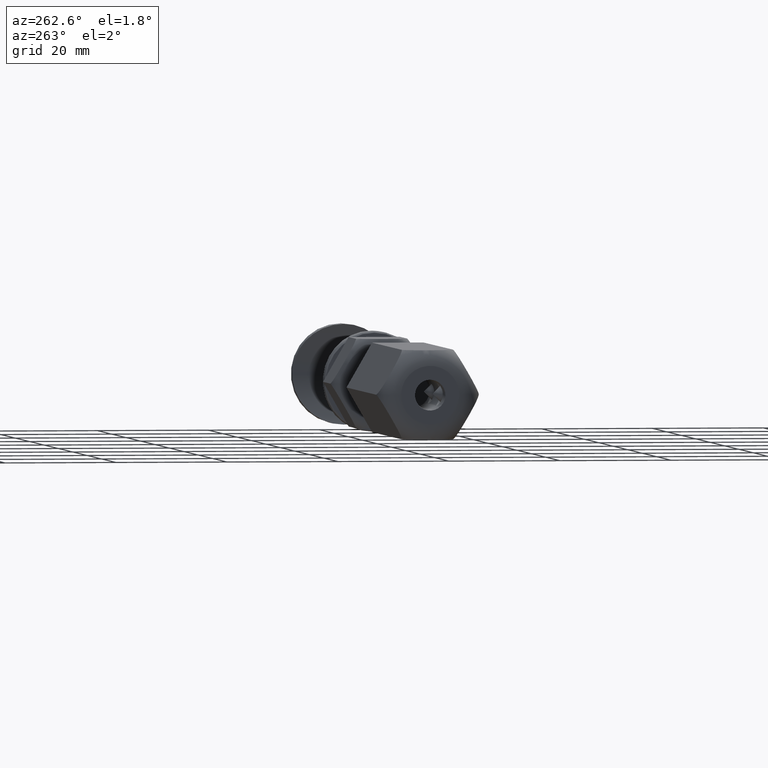
[diagram: clean part render]
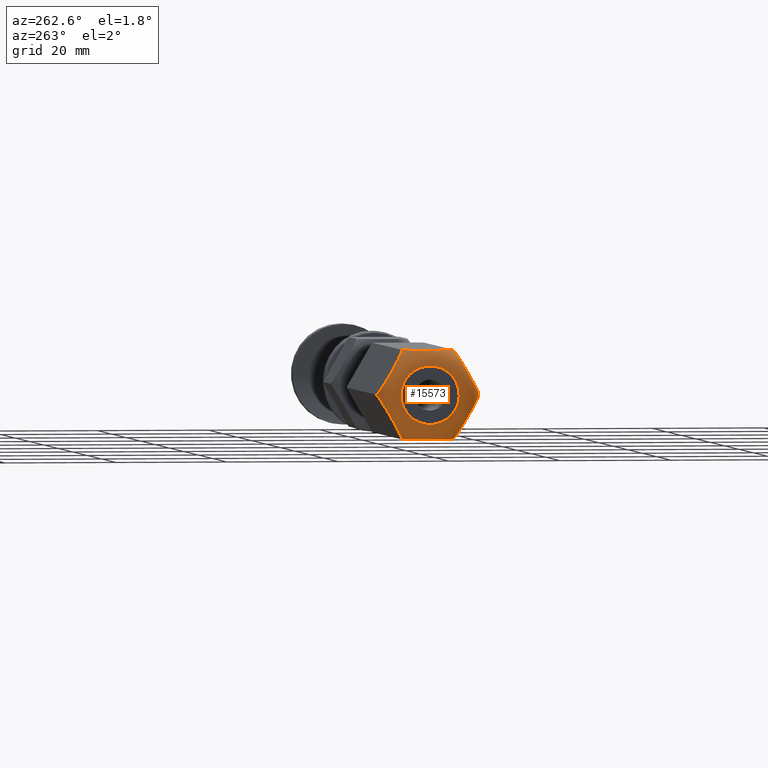
[diagram: same view with one face highlighted and labeled with its STEP entity id]
A machine part, auxiliary view. The second image highlights one B-rep face of the part: STEP entity #15573.
In plain terms, the highlighted toroidal blend (fillet) surface has major radius 5.2376 mm and minor (blend) radius 4 mm.
Its self-contained STEP definition (entity closure, byte-faithful):
#94 = CARTESIAN_POINT ( 'NONE',  ( -5.237604307034014361, 1.734723475976807094E-15, 45.00000000000000711 ) ) ;
#196 = CARTESIAN_POINT ( 'NONE',  ( -8.000000000000955680, -4.618802153516455178, 41.25421066781149193 ) ) ;
#234 = CARTESIAN_POINT ( 'NONE',  ( 0.1587222393036563095, 9.145965979445669802, 41.85383690137565083 ) ) ;
#327 = CARTESIAN_POINT ( 'NONE',  ( -7.686130079813024985, -4.800015036427481618, 42.19438614450636038 ) ) ;
#422 = CARTESIAN_POINT ( 'NONE',  ( 8.000000000000001776, 3.940089428908967406, 42.58398726992948014 ) ) ;
#487 = CARTESIAN_POINT ( 'NONE',  ( 8.000000000000001776, 0.4890779393766487293, 43.89370197131172091 ) ) ;
#551 = CARTESIAN_POINT ( 'NONE',  ( 5.075386445797202661, 6.307328576311620694, 43.80277072359240265 ) ) ;
#552 = CARTESIAN_POINT ( 'NONE',  ( 8.000000000000000000, -2.692139927352141804, 43.40298864242615196 ) ) ;
#558 = CARTESIAN_POINT ( 'NONE',  ( 0.7485458506218656272, -8.805431158676700676, 42.75669433309089840 ) ) ;
#606 = CARTESIAN_POINT ( 'NONE',  ( 1.867204179053446156, 8.159573471625517271, 43.51479239094587115 ) ) ;
#613 = CARTESIAN_POINT ( 'NONE',  ( 3.572823925020929270, -7.174833452156046398, 43.88225172653203288 ) ) ;
#661 = CIRCLE ( 'NONE', #4234, 5.237604307034014361 ) ;
#674 = CARTESIAN_POINT ( 'NONE',  ( 0.1991618949743121647, -9.122618133358280090, 41.97415419835533612 ) ) ;
#874 = CARTESIAN_POINT ( 'NONE',  ( -1.282681821586983739, 8.497047612056132238, 43.18514700619215319 ) ) ;
#1039 = CARTESIAN_POINT ( 'NONE',  ( -3.141149563985602189, 7.424060760702051454, 43.83720161989548103 ) ) ;
#1097 = CARTESIAN_POINT ( 'NONE',  ( -1.769137840282685528E-15, -9.237604307034015250, 40.99999999999999289 ) ) ;
#1130 = CARTESIAN_POINT ( 'NONE',  ( -8.000000000000003553, 4.618802153517018283, 41.25059083872422860 ) ) ;
#1230 = ORIENTED_EDGE ( 'NONE', *, *, #13378, .F. ) ;
#1249 = CARTESIAN_POINT ( 'NONE',  ( -8.000000000000003553, 2.455983584986019430, 43.49539653118362992 ) ) ;
#1307 = CARTESIAN_POINT ( 'NONE',  ( -8.000000000000003553, 0.5144507924411958477, 43.89218237815393309 ) ) ;
#1361 = CARTESIAN_POINT ( 'NONE',  ( -0.04124585867886597368, -9.213790999422815986, 41.49961142492605148 ) ) ;
#1544 = CARTESIAN_POINT ( 'NONE',  ( -4.427176074979077391, -6.681573008394971147, 43.88225172653201156 ) ) ;
#1571 = B_SPLINE_CURVE_WITH_KNOTS ( 'NONE', 3,
 ( #7275, #12896, #8674, #234, #14312, #15692, #1577, #7343, #14370, #8801, #7148, #4395, #4830, #606, #1830, #13091, #17279, #1943, #11617, #13215, #551, #13034, #8915, #14552, #13151, #1883, #3246, #11680, #4643, #9104, #17337, #16003, #3370, #4771 ),
 .UNSPECIFIED., .F., .F.,
 ( 4, 2, 2, 2, 2, 2, 2, 2, 2, 2, 2, 2, 2, 2, 2, 2, 4 ),
 ( 1.959244678758425772E-07, 0.0007486943119338015408, 0.001122943505666774240, 0.001497192699399747156, 0.001871441893132719855, 0.002245691086865692337, 0.002994189474331638168, 0.004491186249263536337, 0.005988183024195433204, 0.006736681411661382506, 0.007485179799127331807, 0.008233678186593280240, 0.008982176574059230409, 0.009730674961525180577, 0.01047917334899112901, 0.01122767173645707744, 0.01197617012392302588 ),
 .UNSPECIFIED. ) ;
#1577 = CARTESIAN_POINT ( 'NONE',  ( 0.3793270624881713848, 9.018599725395560540, 42.28713500885486098 ) ) ;
#1830 = CARTESIAN_POINT ( 'NONE',  ( 2.283122639363383666, 7.919442836604638103, 43.66016978902230505 ) ) ;
#1831 = CARTESIAN_POINT ( 'NONE',  ( 8.000000000000001776, -0.5144506521284709644, 43.89218239036202363 ) ) ;
#1883 = CARTESIAN_POINT ( 'NONE',  ( 6.717318178413018259, 5.359358848494891525, 43.18514700619214608 ) ) ;
#1943 = CARTESIAN_POINT ( 'NONE',  ( 4.211713698009296181, 6.805970269738713441, 43.89306722057519039 ) ) ;
#1946 = CARTESIAN_POINT ( 'NONE',  ( 8.000000000000001776, 3.753179266618492438, 42.75771142931566260 ) ) ;
#1953 = CARTESIAN_POINT ( 'NONE',  ( -1.769137840282685528E-15, -9.237604307034015250, 40.99999999999999289 ) ) ;
#2140 = CARTESIAN_POINT ( 'NONE',  ( 0.5871213750183053026, -8.898629623120211107, 42.58301006518296106 ) ) ;
#2277 = CARTESIAN_POINT ( 'NONE',  ( -0.1991618949743092781, 9.122618133358285419, 41.97415419835535033 ) ) ;
#2334 = CARTESIAN_POINT ( 'NONE',  ( -6.132795820946556731, 5.696832988925504715, 43.51479239094587115 ) ) ;
#2387 = CARTESIAN_POINT ( 'NONE',  ( -4.433623702003366418, 6.677850469196869199, 43.89271815893957296 ) ) ;
#2446 = CARTESIAN_POINT ( 'NONE',  ( -1.673678568543901068, 8.271305534948284688, 43.40554057758357942 ) ) ;
#2448 = CARTESIAN_POINT ( 'NONE',  ( 0.000000000000000000, 1.734723475976807094E-15, 40.99999999999999289 ) ) ;
#2480 = CARTESIAN_POINT ( 'NONE',  ( -8.000000000000001776, -3.352786722058532121, 43.05726287679456732 ) ) ;
#2590 = CARTESIAN_POINT ( 'NONE',  ( -8.000000000000003553, 2.692139954240011512, 43.40298863091239667 ) ) ;
#2712 = CARTESIAN_POINT ( 'NONE',  ( -0.3171166367991717361, -9.054516931413505887, 42.18434787125507057 ) ) ;
#2765 = CARTESIAN_POINT ( 'NONE',  ( -0.2069844883456818663, -9.118101756969558380, 41.96820820789258732 ) ) ;
#2958 = CARTESIAN_POINT ( 'NONE',  ( -5.075386445797204438, -6.307328576311621582, 43.80277072359242396 ) ) ;
#3143 = CARTESIAN_POINT ( 'NONE',  ( -8.000000000000000000, 4.618802153517014730, 40.99999999999999289 ) ) ;
#3163 = DIRECTION ( 'NONE',  ( -0.000000000000000000, -0.000000000000000000, -1.000000000000000000 ) ) ;
#3241 = B_SPLINE_CURVE_WITH_KNOTS ( 'NONE', 3,
 ( #5518, #11221, #1361, #11096, #2765, #2712, #15287, #16798, #15472, #14031, #5630, #6980, #7049, #7112, #11282, #16933, #6924, #8441, #1544, #5757, #2958, #15536, #7174, #16676, #9730, #16732, #7363, #17234, #8636, #327, #14274, #14387, #196, #12807 ),
 .UNSPECIFIED., .F., .F.,
 ( 4, 2, 2, 2, 2, 2, 2, 2, 2, 2, 2, 2, 2, 2, 2, 2, 4 ),
 ( 1.959244678758189662E-07, 0.0007486943119338005650, 0.001122943505666772939, 0.001497192699399745421, 0.001871441893132717469, 0.002245691086865689735, 0.002994189474331634699, 0.004491186249263531133, 0.005988183024195428868, 0.006736681411661377301, 0.007485179799127324868, 0.008233678186593273302, 0.008982176574059221735, 0.009730674961525171904, 0.01047917334899111860, 0.01122767173645706877, 0.01197617012392301721 ),
 .UNSPECIFIED. ) ;
#3246 = CARTESIAN_POINT ( 'NONE',  ( 6.903453441227616949, 5.251893604403200300, 43.05745001845090769 ) ) ;
#3310 = CARTESIAN_POINT ( 'NONE',  ( 8.000000000000003553, 3.352786703269217572, 43.05726288905571408 ) ) ;
#3370 = CARTESIAN_POINT ( 'NONE',  ( 8.000000000000961009, 4.618802153516453401, 41.25421066781150614 ) ) ;
#3438 = CARTESIAN_POINT ( 'NONE',  ( 1.673678568543905953, -8.271305534948281135, 43.40554057758357942 ) ) ;
#3795 = CARTESIAN_POINT ( 'NONE',  ( -3.788286301990709148, 7.050436190812306769, 43.89306722057519039 ) ) ;
#3812 = TOROIDAL_SURFACE ( 'NONE', #7846, 5.237604307034014361, 4.000000000000006217 ) ;
#3850 = DIRECTION ( 'NONE',  ( -0.000000000000000000, -0.000000000000000000, -1.000000000000000000 ) ) ;
#3877 = CARTESIAN_POINT ( 'NONE',  ( -8.000000000000003553, 3.358808931704132750, 43.05353551747013796 ) ) ;
#3994 = CARTESIAN_POINT ( 'NONE',  ( -8.000000000000003553, -4.618802153517005848, 40.99999999999999289 ) ) ;
#4058 = CARTESIAN_POINT ( 'NONE',  ( -8.000000000000005329, -4.178113496158063711, 42.29076241024051797 ) ) ;
#4234 = AXIS2_PLACEMENT_3D ( 'NONE', #4433, #3163, #4365 ) ;
#4344 = VERTEX_POINT ( 'NONE', #3143 ) ;
#4365 = DIRECTION ( 'NONE',  ( -1.000000000000000000, 0.000000000000000000, 0.000000000000000000 ) ) ;
#4395 = CARTESIAN_POINT ( 'NONE',  ( 1.092655103728776389, 8.606759588764782976, 43.05448962635249188 ) ) ;
#4403 = CARTESIAN_POINT ( 'NONE',  ( 7.250281961278693288, -5.051652064989072599, 42.74896336844649625 ) ) ;
#4433 = CARTESIAN_POINT ( 'NONE',  ( 0.000000000000000000, 1.734723475976807094E-15, 45.00000000000000711 ) ) ;
#4527 = CARTESIAN_POINT ( 'NONE',  ( 8.000000000000012434, -4.618802153517002296, 41.25468682717439606 ) ) ;
#4643 = CARTESIAN_POINT ( 'NONE',  ( 7.412878624981699360, 4.957776837430802885, 42.58301006518295395 ) ) ;
#4713 = CARTESIAN_POINT ( 'NONE',  ( 8.000000000000001776, 0.9924995606820768979, 43.85060076674451324 ) ) ;
#4771 = CARTESIAN_POINT ( 'NONE',  ( 8.000000000000010658, 4.618802153516997855, 40.99999999999999289 ) ) ;
#4776 = CARTESIAN_POINT ( 'NONE',  ( 8.000000000000000000, -3.358808912604403840, 43.05353553000416866 ) ) ;
#4825 = EDGE_CURVE ( 'NONE', #10863, #7293, #10417, .T. ) ;
#4830 = CARTESIAN_POINT ( 'NONE',  ( 1.282076073300615127, 8.497397340992328907, 43.18472171354524392 ) ) ;
#4902 = VERTEX_POINT ( 'NONE', #94 ) ;
#4914 = CARTESIAN_POINT ( 'NONE',  ( -7.793015511654325600, 4.738304703581458277, 41.96820820789258022 ) ) ;
#5136 = FACE_OUTER_BOUND ( 'NONE', #7658, .T. ) ;
#5228 = CARTESIAN_POINT ( 'NONE',  ( -8.000000000000005329, 3.141993615721023758, 43.18269221654532686 ) ) ;
#5256 = CARTESIAN_POINT ( 'NONE',  ( -4.862494959047605647, 6.430241533494679196, 43.85019408832059895 ) ) ;
#5291 = CARTESIAN_POINT ( 'NONE',  ( -8.000000000000001776, -4.569904610147636603, 41.50382557813893669 ) ) ;
#5407 = CARTESIAN_POINT ( 'NONE',  ( -8.000000000000005329, -4.434660512078902883, 41.85564047372801610 ) ) ;
#5518 = CARTESIAN_POINT ( 'NONE',  ( -1.769137840282685528E-15, -9.237604307034015250, 40.99999999999999289 ) ) ;
#5630 = CARTESIAN_POINT ( 'NONE',  ( -0.8327565186281271625, -8.756812106834653164, 42.82926552586379643 ) ) ;
#5757 = CARTESIAN_POINT ( 'NONE',  ( -4.858850436014398255, -6.432345699848972309, 43.83720161989546682 ) ) ;
#5922 = CARTESIAN_POINT ( 'NONE',  ( 8.000000000000010658, 4.618802153516997855, 40.99999999999999289 ) ) ;
#5992 = CARTESIAN_POINT ( 'NONE',  ( 8.000000000000005329, -4.618802153517001408, 40.99999999999999289 ) ) ;
#6046 = CARTESIAN_POINT ( 'NONE',  ( 8.000000000000001776, 4.434660508883089491, 41.85564048095637446 ) ) ;
#6160 = CARTESIAN_POINT ( 'NONE',  ( 8.000000000000000000, -3.942926262521257552, 42.58076650204093738 ) ) ;
#6169 = CARTESIAN_POINT ( 'NONE',  ( 0.04306599320267236880, -9.212740144265529452, 41.50668772745576263 ) ) ;
#6295 = CARTESIAN_POINT ( 'NONE',  ( 0.3138699201869741828, -9.056391424123539480, 42.19438614450636749 ) ) ;
#6322 = VERTEX_POINT ( 'NONE', #15931 ) ;
#6472 = CARTESIAN_POINT ( 'NONE',  ( 8.000000000000001776, -4.618802153517020948, 41.25059084096967865 ) ) ;
#6633 = EDGE_CURVE ( 'NONE', #4902, #4902, #661, .T. ) ;
#6640 = CARTESIAN_POINT ( 'NONE',  ( -8.000000000000000000, 4.618802153517014730, 40.99999999999999289 ) ) ;
#6669 = CARTESIAN_POINT ( 'NONE',  ( -6.907344896271228052, 5.249646871786233682, 43.05448962635252030 ) ) ;
#6696 = CARTESIAN_POINT ( 'NONE',  ( -8.000000000000003553, 1.009007921286668497, 43.84811374849191878 ) ) ;
#6875 = CARTESIAN_POINT ( 'NONE',  ( -8.000000000000003553, -1.979118659227968813, 43.66106814162166216 ) ) ;
#6924 = CARTESIAN_POINT ( 'NONE',  ( -3.566376297996639799, -7.178555991354155452, 43.89271815893957296 ) ) ;
#6980 = CARTESIAN_POINT ( 'NONE',  ( -1.092655103728780830, -8.606759588764788305, 43.05448962635250609 ) ) ;
#7049 = CARTESIAN_POINT ( 'NONE',  ( -1.282076073300619790, -8.497397340992328907, 43.18472171354525813 ) ) ;
#7079 = ORIENTED_EDGE ( 'NONE', *, *, #10219, .F. ) ;
#7112 = CARTESIAN_POINT ( 'NONE',  ( -1.867204179053449264, -8.159573471625511942, 43.51479239094587115 ) ) ;
#7148 = CARTESIAN_POINT ( 'NONE',  ( 0.8327565186281224996, 8.756812106834653164, 42.82926552586379643 ) ) ;
#7174 = CARTESIAN_POINT ( 'NONE',  ( -5.710173907115474456, -5.940833864641318129, 43.64835411522502540 ) ) ;
#7275 = CARTESIAN_POINT ( 'NONE',  ( 2.602085213965210642E-15, 9.237604307034018802, 40.99999999999999289 ) ) ;
#7287 = EDGE_CURVE ( 'NONE', #4344, #10772, #15582, .T. ) ;
#7293 = VERTEX_POINT ( 'NONE', #1097 ) ;
#7343 = CARTESIAN_POINT ( 'NONE',  ( 0.5166738966480759476, 8.939302493720997944, 42.48315152179993248 ) ) ;
#7363 = CARTESIAN_POINT ( 'NONE',  ( -6.903453441227616061, -5.251893604403200300, 43.05745001845090059 ) ) ;
#7405 = CARTESIAN_POINT ( 'NONE',  ( 8.000000000000000000, 4.569904609268164108, 41.50382558259673260 ) ) ;
#7411 = CARTESIAN_POINT ( 'NONE',  ( 7.841277760696346633, -4.710440481105351296, 41.85383690137562240 ) ) ;
#7422 = EDGE_CURVE ( 'NONE', #9886, #10863, #16716, .T. ) ;
#7469 = CARTESIAN_POINT ( 'NONE',  ( 7.999999999999998224, -1.009007826064906688, 43.84811376209939482 ) ) ;
#7474 = CARTESIAN_POINT ( 'NONE',  ( 7.682883363200835980, -4.801889529137512547, 42.18434787125504926 ) ) ;
#7658 = EDGE_LOOP ( 'NONE', ( #1230, #10931, #7079, #15444, #17504, #10591 ) ) ;
#7665 = CARTESIAN_POINT ( 'NONE',  ( -8.000000000000000000, 4.618802153517014730, 40.99999999999999289 ) ) ;
#7718 = CARTESIAN_POINT ( 'NONE',  ( 3.788286301990712257, -7.050436190812304105, 43.89306722057520460 ) ) ;
#7778 = CARTESIAN_POINT ( 'NONE',  ( -9.563346434566268250E-13, -9.237604307034564144, 41.25421066781149904 ) ) ;
#7843 = CARTESIAN_POINT ( 'NONE',  ( -7.250281961278695952, 5.051652064989072599, 42.74896336844652467 ) ) ;
#7846 = AXIS2_PLACEMENT_3D ( 'NONE', #2448, #3850, #13658 ) ;
#8011 = CARTESIAN_POINT ( 'NONE',  ( 2.602085213965210642E-15, 9.237604307034018802, 40.99999999999999289 ) ) ;
#8063 = CARTESIAN_POINT ( 'NONE',  ( -2.289826092884525544, 7.915572595909710074, 43.64835411522505382 ) ) ;
#8094 = CARTESIAN_POINT ( 'NONE',  ( -8.000000000000003553, 1.979342784770008246, 43.64712766533650523 ) ) ;
#8423 = B_SPLINE_CURVE_WITH_KNOTS ( 'NONE', 3,
 ( #3994, #12493, #5291, #5407, #17845, #16562, #4058, #9494, #15236, #2480, #11106, #12260, #6875, #15060, #13685, #1307, #6696, #15121, #8094, #1249, #2590, #5228, #3877, #9610, #12370, #10864, #15012, #10988, #1130, #6640 ),
 .UNSPECIFIED., .F., .F.,
 ( 4, 2, 2, 2, 2, 2, 2, 2, 2, 2, 2, 2, 2, 2, 4 ),
 ( 0.01782495508642078369, 0.01856757860633173954, 0.01893889036628720879, 0.01931020212624267457, 0.02005282564615359572, 0.02079544916606451688, 0.02228069620588634878, 0.02376594324570818414, 0.02525119028553001604, 0.02599381380544093026, 0.02673643732535184447, 0.02747906084526276216, 0.02822168436517367637, 0.02896430788508459406, 0.02970693140499550827 ),
 .UNSPECIFIED. ) ;
#8431 = CARTESIAN_POINT ( 'NONE',  ( 2.602085213965210642E-15, 9.237604307034018802, 40.99999999999999289 ) ) ;
#8441 = CARTESIAN_POINT ( 'NONE',  ( -4.211713698009293516, -6.805970269738712553, 43.89306722057519750 ) ) ;
#8617 = CARTESIAN_POINT ( 'NONE',  ( 6.907344896271229828, -5.249646871786233682, 43.05448962635249899 ) ) ;
#8636 = CARTESIAN_POINT ( 'NONE',  ( -7.412878624981697584, -4.957776837430807326, 42.58301006518296106 ) ) ;
#8674 = CARTESIAN_POINT ( 'NONE',  ( 0.04124585867886340629, 9.213790999422814210, 41.49961142492605148 ) ) ;
#8801 = CARTESIAN_POINT ( 'NONE',  ( 0.7497180387213137065, 8.804754395561948499, 42.74896336844652467 ) ) ;
#8803 = CARTESIAN_POINT ( 'NONE',  ( 8.000000000000003553, 4.618802153517022724, 41.25024699729215172 ) ) ;
#8861 = CARTESIAN_POINT ( 'NONE',  ( 8.000000000000003553, 3.135350852326893367, 43.18648338403921372 ) ) ;
#8915 = CARTESIAN_POINT ( 'NONE',  ( 5.710173907115477121, 5.940833864641314577, 43.64835411522502540 ) ) ;
#8917 = CARTESIAN_POINT ( 'NONE',  ( 8.000000000000001776, 4.178113488848268275, 42.29076242024786580 ) ) ;
#8980 = CARTESIAN_POINT ( 'NONE',  ( 8.000000000000000000, -4.256979566995696906, 42.19333027108968537 ) ) ;
#9047 = CARTESIAN_POINT ( 'NONE',  ( 4.433623702003368194, -6.677850469196864758, 43.89271815893955875 ) ) ;
#9104 = CARTESIAN_POINT ( 'NONE',  ( 7.686130079813029425, 4.800015036427478954, 42.19438614450637459 ) ) ;
#9124 = CARTESIAN_POINT ( 'NONE',  ( -7.483326103351930492, 4.917103966830024042, 42.48315152179993959 ) ) ;
#9293 = CARTESIAN_POINT ( 'NONE',  ( -2.499462744038903228, 7.794538818933714808, 43.70835956831881219 ) ) ;
#9411 = CARTESIAN_POINT ( 'NONE',  ( -5.716877360636620331, 5.936963623946383883, 43.66016978902231216 ) ) ;
#9494 = CARTESIAN_POINT ( 'NONE',  ( -8.000000000000005329, -3.940089439883076139, 42.58398725841495036 ) ) ;
#9610 = CARTESIAN_POINT ( 'NONE',  ( -8.000000000000003553, 3.761260588716701658, 42.75085959474183994 ) ) ;
#9730 = CARTESIAN_POINT ( 'NONE',  ( -6.326321431456100264, -5.585100925602735522, 43.40554057758357231 ) ) ;
#9886 = VERTEX_POINT ( 'NONE', #17013 ) ;
#10013 = CARTESIAN_POINT ( 'NONE',  ( 6.717923926699392645, -5.359009119558693968, 43.18472171354525102 ) ) ;
#10042 = ORIENTED_EDGE ( 'NONE', *, *, #6633, .T. ) ;
#10078 = CARTESIAN_POINT ( 'NONE',  ( 8.000000000000000000, -4.389744536411927633, 41.97252492910909893 ) ) ;
#10086 = CARTESIAN_POINT ( 'NONE',  ( 7.620672937511835165, -4.837806735155458782, 42.28713500885484677 ) ) ;
#10204 = CARTESIAN_POINT ( 'NONE',  ( 8.000000000000000000, 1.979118624766899037, 43.66106815119476892 ) ) ;
#10219 = EDGE_CURVE ( 'NONE', #6322, #4344, #8423, .T. ) ;
#10326 = CARTESIAN_POINT ( 'NONE',  ( 8.000000000000000000, -3.141993594239491205, 43.18269222871840185 ) ) ;
#10401 = FACE_OUTER_BOUND ( 'NONE', #13022, .T. ) ;
#10417 = B_SPLINE_CURVE_WITH_KNOTS ( 'NONE', 3,
 ( #5992, #4527, #15772, #7411, #15583, #7474, #10086, #17164, #12787, #4403, #16977, #8617, #10013, #11932, #17405, #14558, #9047, #7718, #613, #13098, #16128, #11686, #10516, #11803, #3438, #14613, #14675, #558, #2140, #6295, #674, #6169, #7778, #1953 ),
 .UNSPECIFIED., .F., .F.,
 ( 4, 2, 2, 2, 2, 2, 2, 2, 2, 2, 2, 2, 2, 2, 2, 2, 4 ),
 ( 1.959244678688549525E-07, 0.0007486943119338412226, 0.001122943505666818692, 0.001497192699399795728, 0.001871441893132772981, 0.002245691086865750016, 0.002994189474331693246, 0.004491186249263580572, 0.005988183024195467899, 0.006736681411661409394, 0.007485179799127351756, 0.008233678186593292384, 0.008982176574059233878, 0.009730674961525175373, 0.01047917334899111860, 0.01122767173645706010, 0.01197617012392300159 ),
 .UNSPECIFIED. ) ;
#10516 = CARTESIAN_POINT ( 'NONE',  ( 2.289826092884529540, -7.915572595909701192, 43.64835411522503250 ) ) ;
#10591 = ORIENTED_EDGE ( 'NONE', *, *, #7422, .F. ) ;
#10599 = CARTESIAN_POINT ( 'NONE',  ( -7.620672937511836054, 4.837806735155459670, 42.28713500885486809 ) ) ;
#10643 = CARTESIAN_POINT ( 'NONE',  ( 8.000000000000001776, -4.569835532510474252, 41.50396219016342769 ) ) ;
#10772 = VERTEX_POINT ( 'NONE', #8431 ) ;
#10780 = CARTESIAN_POINT ( 'NONE',  ( -6.717923926699389092, 5.359009119558693968, 43.18472171354525102 ) ) ;
#10840 = CARTESIAN_POINT ( 'NONE',  ( -1.877673606444069776, 8.153528944903277065, 43.49732817391964801 ) ) ;
#10863 = VERTEX_POINT ( 'NONE', #15952 ) ;
#10864 = CARTESIAN_POINT ( 'NONE',  ( -8.000000000000005329, 4.256979573132682937, 42.19333026154945543 ) ) ;
#10931 = ORIENTED_EDGE ( 'NONE', *, *, #7287, .F. ) ;
#10988 = CARTESIAN_POINT ( 'NONE',  ( -8.000000000000003553, 4.569835533406278572, 41.50396218566724826 ) ) ;
#11096 = CARTESIAN_POINT ( 'NONE',  ( -0.1587222393036589740, -9.145965979445666250, 41.85383690137565083 ) ) ;
#11106 = CARTESIAN_POINT ( 'NONE',  ( -8.000000000000003553, -3.135350874163935320, 43.18648337173475937 ) ) ;
#11221 = CARTESIAN_POINT ( 'NONE',  ( 4.208059681959364084E-15, -9.237604307034020579, 41.25468682717441737 ) ) ;
#11282 = CARTESIAN_POINT ( 'NONE',  ( -2.283122639363383222, -7.919442836604635438, 43.66016978902230505 ) ) ;
#11559 = CARTESIAN_POINT ( 'NONE',  ( 8.000000000000001776, 4.378802633394879962, 41.97022636655232475 ) ) ;
#11617 = CARTESIAN_POINT ( 'NONE',  ( 4.427176074979077391, 6.681573008394972923, 43.88225172653202577 ) ) ;
#11680 = CARTESIAN_POINT ( 'NONE',  ( 7.251454149378137259, 5.050975301874316870, 42.75669433309090550 ) ) ;
#11686 = CARTESIAN_POINT ( 'NONE',  ( 2.499462744038905893, -7.794538818933711255, 43.70835956831879798 ) ) ;
#11701 = CARTESIAN_POINT ( 'NONE',  ( -7.408064604950722831, 4.960556213191575026, 42.57629628855899284 ) ) ;
#11803 = CARTESIAN_POINT ( 'NONE',  ( 1.877673606444074883, -8.153528944903269959, 43.49732817391966222 ) ) ;
#11882 = CARTESIAN_POINT ( 'NONE',  ( -7.841277760696350185, 4.710440481105348631, 41.85383690137564372 ) ) ;
#11932 = CARTESIAN_POINT ( 'NONE',  ( 6.132795820946559395, -5.696832988925506491, 43.51479239094585694 ) ) ;
#12062 = CARTESIAN_POINT ( 'NONE',  ( 9.592975647061221656E-13, 9.237604307034567697, 41.25421066781149904 ) ) ;
#12118 = CARTESIAN_POINT ( 'NONE',  ( -0.04306599320266825404, 9.212740144265538333, 41.50668772745574842 ) ) ;
#12171 = CARTESIAN_POINT ( 'NONE',  ( -3.572823925020925273, 7.174833452156050839, 43.88225172653203998 ) ) ;
#12260 = CARTESIAN_POINT ( 'NONE',  ( -8.000000000000005329, -2.456531748767516454, 43.51726221997465416 ) ) ;
#12370 = CARTESIAN_POINT ( 'NONE',  ( -8.000000000000001776, 3.942926273268656967, 42.58076649075151465 ) ) ;
#12493 = CARTESIAN_POINT ( 'NONE',  ( -8.000000000000003553, -4.618802153517014730, 41.25024699504982806 ) ) ;
#12787 = CARTESIAN_POINT ( 'NONE',  ( 7.408064604950721055, -4.960556213191575026, 42.57629628855898574 ) ) ;
#12807 = CARTESIAN_POINT ( 'NONE',  ( -8.000000000000003553, -4.618802153517005848, 40.99999999999999289 ) ) ;
#12896 = CARTESIAN_POINT ( 'NONE',  ( -7.851430732415413729E-15, 9.237604307034025908, 41.25468682717442448 ) ) ;
#13022 = EDGE_LOOP ( 'NONE', ( #10042 ) ) ;
#13034 = CARTESIAN_POINT ( 'NONE',  ( 5.500537255961099881, 6.061867641617308067, 43.70835956831879798 ) ) ;
#13091 = CARTESIAN_POINT ( 'NONE',  ( 3.137505040952397461, 7.426164927056340126, 43.85019408832061316 ) ) ;
#13093 = CARTESIAN_POINT ( 'NONE',  ( 8.000000000000000000, -1.979342744620956385, 43.64712767648819636 ) ) ;
#13098 = CARTESIAN_POINT ( 'NONE',  ( 3.141149563985607074, -7.424060760702047901, 43.83720161989546682 ) ) ;
#13151 = CARTESIAN_POINT ( 'NONE',  ( 6.326321431456101152, 5.585100925602733746, 43.40554057758357231 ) ) ;
#13215 = CARTESIAN_POINT ( 'NONE',  ( 4.858850436014398255, 6.432345699848967868, 43.83720161989545971 ) ) ;
#13378 = EDGE_CURVE ( 'NONE', #10772, #9886, #1571, .T. ) ;
#13605 = CARTESIAN_POINT ( 'NONE',  ( -0.5871213750183020830, 8.898629623120216436, 42.58301006518296816 ) ) ;
#13655 = CARTESIAN_POINT ( 'NONE',  ( -0.7485458506218638508, 8.805431158676707781, 42.75669433309089840 ) ) ;
#13658 = DIRECTION ( 'NONE',  ( -1.000000000000000000, 0.000000000000000000, 0.000000000000000000 ) ) ;
#13685 = CARTESIAN_POINT ( 'NONE',  ( -8.000000000000005329, -0.4890776791084497921, 43.89370198291322112 ) ) ;
#14031 = CARTESIAN_POINT ( 'NONE',  ( -0.7497180387213164821, -8.804754395561943170, 42.74896336844651756 ) ) ;
#14274 = CARTESIAN_POINT ( 'NONE',  ( -7.800838105025687419, -4.733788327192741008, 41.97415419835532902 ) ) ;
#14312 = CARTESIAN_POINT ( 'NONE',  ( 0.2069844883456787576, 9.118101756969561933, 41.96820820789259443 ) ) ;
#14370 = CARTESIAN_POINT ( 'NONE',  ( 0.5919353950492843852, 8.895850247359446072, 42.57629628855899995 ) ) ;
#14387 = CARTESIAN_POINT ( 'NONE',  ( -7.956934006797327541, -4.643666316285486317, 41.50668772745575552 ) ) ;
#14552 = CARTESIAN_POINT ( 'NONE',  ( 6.122326393555931112, 5.702877515647746698, 43.49732817391964801 ) ) ;
#14553 = CARTESIAN_POINT ( 'NONE',  ( 8.000000000000000000, -3.761260575362187275, 42.75085960661601092 ) ) ;
#14558 = CARTESIAN_POINT ( 'NONE',  ( 4.862494959047610976, -6.430241533494677419, 43.85019408832059895 ) ) ;
#14613 = CARTESIAN_POINT ( 'NONE',  ( 1.282681821586987736, -8.497047612056125132, 43.18514700619215319 ) ) ;
#14675 = CARTESIAN_POINT ( 'NONE',  ( 1.096546558772386160, -8.604512856147820798, 43.05745001845091480 ) ) ;
#14689 = CARTESIAN_POINT ( 'NONE',  ( -7.682883363200834204, 4.801889529137513435, 42.18434787125506347 ) ) ;
#14809 = CARTESIAN_POINT ( 'NONE',  ( -1.096546558772384161, 8.604512856147824351, 43.05745001845092190 ) ) ;
#15012 = CARTESIAN_POINT ( 'NONE',  ( -8.000000000000003553, 4.389744540357210845, 41.97252492100966492 ) ) ;
#15060 = CARTESIAN_POINT ( 'NONE',  ( -8.000000000000007105, -0.9924996057862579546, 43.85060076103288651 ) ) ;
#15121 = CARTESIAN_POINT ( 'NONE',  ( -8.000000000000003553, 1.738355480281004839, 43.70696731489186249 ) ) ;
#15236 = CARTESIAN_POINT ( 'NONE',  ( -8.000000000000003553, -3.753179280118456251, 42.75771141741970638 ) ) ;
#15258 = EDGE_CURVE ( 'NONE', #7293, #6322, #3241, .T. ) ;
#15287 = CARTESIAN_POINT ( 'NONE',  ( -0.3793270624881753261, -9.018599725395560540, 42.28713500885485388 ) ) ;
#15444 = ORIENTED_EDGE ( 'NONE', *, *, #15258, .F. ) ;
#15472 = CARTESIAN_POINT ( 'NONE',  ( -0.5919353950492868277, -8.895850247359442520, 42.57629628855899995 ) ) ;
#15536 = CARTESIAN_POINT ( 'NONE',  ( -5.500537255961099881, -6.061867641617307179, 43.70835956831880509 ) ) ;
#15573 = ADVANCED_FACE ( 'NONE', ( #10401, #5136 ), #3812, .T. ) ;
#15583 = CARTESIAN_POINT ( 'NONE',  ( 7.793015511654325600, -4.738304703581460942, 41.96820820789258022 ) ) ;
#15582 = B_SPLINE_CURVE_WITH_KNOTS ( 'NONE', 3,
 ( #7665, #17418, #17301, #11882, #4914, #14689, #10599, #9124, #11701, #7843, #16319, #6669, #10780, #2334, #9411, #5256, #2387, #3795, #12171, #1039, #17707, #9293, #8063, #10840, #2446, #874, #14809, #13655, #13605, #17818, #2277, #12118, #12062, #8011 ),
 .UNSPECIFIED., .F., .F.,
 ( 4, 2, 2, 2, 2, 2, 2, 2, 2, 2, 2, 2, 2, 2, 2, 2, 4 ),
 ( 1.959244678757395833E-07, 0.0007486943119337897230, 0.001122943505666756459, 0.001497192699399723303, 0.001871441893132689714, 0.002245691086865656775, 0.002994189474331604775, 0.004491186249263511183, 0.005988183024195416725, 0.006736681411661367760, 0.007485179799127318796, 0.008233678186593269832, 0.008982176574059221735, 0.009730674961525171904, 0.01047917334899112207, 0.01122767173645707571, 0.01197617012392302588 ),
 .UNSPECIFIED. ) ;
#15692 = CARTESIAN_POINT ( 'NONE',  ( 0.3171166367991683499, 9.054516931413509440, 42.18434787125506347 ) ) ;
#15772 = CARTESIAN_POINT ( 'NONE',  ( 7.958754141321140452, -4.642615461128206000, 41.49961142492604438 ) ) ;
#15822 = CARTESIAN_POINT ( 'NONE',  ( 8.000000000000000000, 4.250374132032897379, 42.18784112892849691 ) ) ;
#15883 = CARTESIAN_POINT ( 'NONE',  ( 8.000000000000000000, -2.455983556934949963, 43.49539654174239445 ) ) ;
#15931 = CARTESIAN_POINT ( 'NONE',  ( -8.000000000000003553, -4.618802153517005848, 40.99999999999999289 ) ) ;
#15952 = CARTESIAN_POINT ( 'NONE',  ( 8.000000000000005329, -4.618802153517001408, 40.99999999999999289 ) ) ;
#16003 = CARTESIAN_POINT ( 'NONE',  ( 7.956934006797330206, 4.643666316285487206, 41.50668772745575552 ) ) ;
#16128 = CARTESIAN_POINT ( 'NONE',  ( 2.924613554202805332, -7.549077884239397740, 43.80277072359240975 ) ) ;
#16319 = CARTESIAN_POINT ( 'NONE',  ( -7.167243481371881053, 5.099594353716367934, 42.82926552586380353 ) ) ;
#16562 = CARTESIAN_POINT ( 'NONE',  ( -8.000000000000003553, -4.250374138221848952, 42.18784111949709370 ) ) ;
#16676 = CARTESIAN_POINT ( 'NONE',  ( -6.122326393555928448, -5.702877515647745810, 43.49732817391965511 ) ) ;
#16716 = B_SPLINE_CURVE_WITH_KNOTS ( 'NONE', 3,
 ( #5922, #8803, #7405, #6046, #11559, #15822, #8917, #422, #1946, #3310, #8861, #17338, #10204, #4713, #487, #1831, #7469, #17215, #13093, #15883, #552, #10326, #4776, #14553, #6160, #8980, #10078, #10643, #6472, #17523 ),
 .UNSPECIFIED., .F., .F.,
 ( 4, 2, 2, 2, 2, 2, 2, 2, 2, 2, 2, 2, 2, 2, 4 ),
 ( 0.01782495609688745583, 0.01856757966647357497, 0.01893889145126662760, 0.01931020323605967676, 0.02005282680564577855, 0.02079545037523188034, 0.02228069751440409085, 0.02376594465357630137, 0.02525119179274851536, 0.02599381536233462062, 0.02673643893192072588, 0.02747906250150683460, 0.02822168607109293986, 0.02896430964067904512, 0.02970693321026515038 ),
 .UNSPECIFIED. ) ;
#16732 = CARTESIAN_POINT ( 'NONE',  ( -6.717318178413012930, -5.359358848494893302, 43.18514700619215319 ) ) ;
#16798 = CARTESIAN_POINT ( 'NONE',  ( -0.5166738966480791673, -8.939302493720996168, 42.48315152179992538 ) ) ;
#16933 = CARTESIAN_POINT ( 'NONE',  ( -3.137505040952397906, -7.426164927056340126, 43.85019408832061316 ) ) ;
#16977 = CARTESIAN_POINT ( 'NONE',  ( 7.167243481371884606, -5.099594353716367046, 42.82926552586378932 ) ) ;
#17013 = CARTESIAN_POINT ( 'NONE',  ( 8.000000000000010658, 4.618802153516997855, 40.99999999999999289 ) ) ;
#17164 = CARTESIAN_POINT ( 'NONE',  ( 7.483326103351932268, -4.917103966830023154, 42.48315152179991827 ) ) ;
#17215 = CARTESIAN_POINT ( 'NONE',  ( 7.999999999999998224, -1.738355429357148818, 43.70696732715698118 ) ) ;
#17234 = CARTESIAN_POINT ( 'NONE',  ( -7.251454149378138148, -5.050975301874317758, 42.75669433309090550 ) ) ;
#17279 = CARTESIAN_POINT ( 'NONE',  ( 3.566376297996640243, 7.178555991354155452, 43.89271815893956585 ) ) ;
#17301 = CARTESIAN_POINT ( 'NONE',  ( -7.958754141321145781, 4.642615461128203336, 41.49961142492605148 ) ) ;
#17337 = CARTESIAN_POINT ( 'NONE',  ( 7.800838105025690972, 4.733788327192741008, 41.97415419835532902 ) ) ;
#17338 = CARTESIAN_POINT ( 'NONE',  ( 8.000000000000001776, 2.456531719451064522, 43.51726223093300661 ) ) ;
#17405 = CARTESIAN_POINT ( 'NONE',  ( 5.716877360636622107, -5.936963623946379442, 43.66016978902230505 ) ) ;
#17418 = CARTESIAN_POINT ( 'NONE',  ( -8.000000000000012434, 4.618802153516999631, 41.25468682717440316 ) ) ;
#17504 = ORIENTED_EDGE ( 'NONE', *, *, #4825, .F. ) ;
#17523 = CARTESIAN_POINT ( 'NONE',  ( 8.000000000000005329, -4.618802153517001408, 40.99999999999999289 ) ) ;
#17707 = CARTESIAN_POINT ( 'NONE',  ( -2.924613554202800891, 7.549077884239400404, 43.80277072359240975 ) ) ;
#17818 = CARTESIAN_POINT ( 'NONE',  ( -0.3138699201869710742, 9.056391424123544809, 42.19438614450639591 ) ) ;
#17845 = CARTESIAN_POINT ( 'NONE',  ( -8.000000000000003553, -4.378802637562972500, 41.97022635843430294 ) ) ;